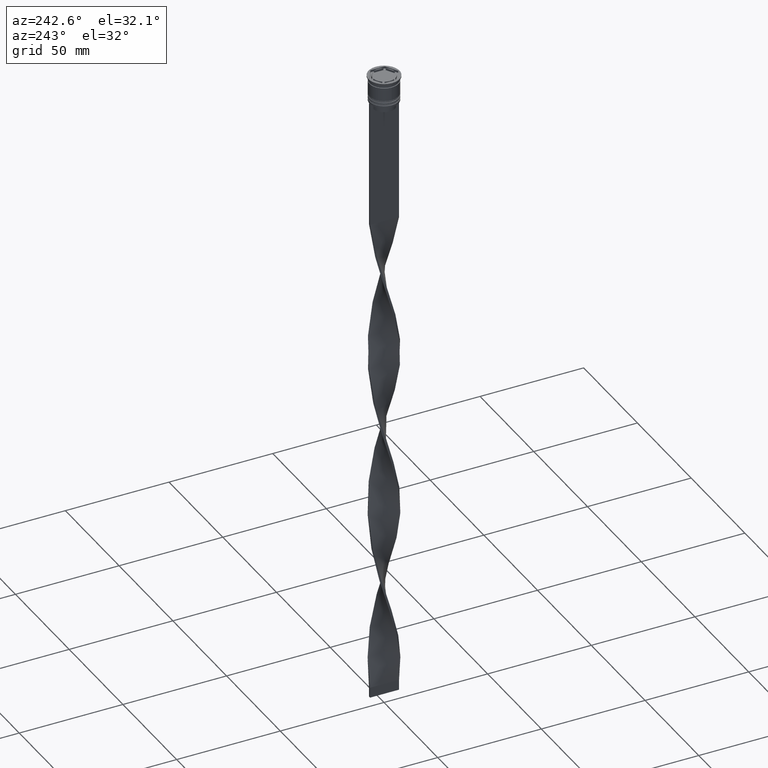
[diagram: clean part render]
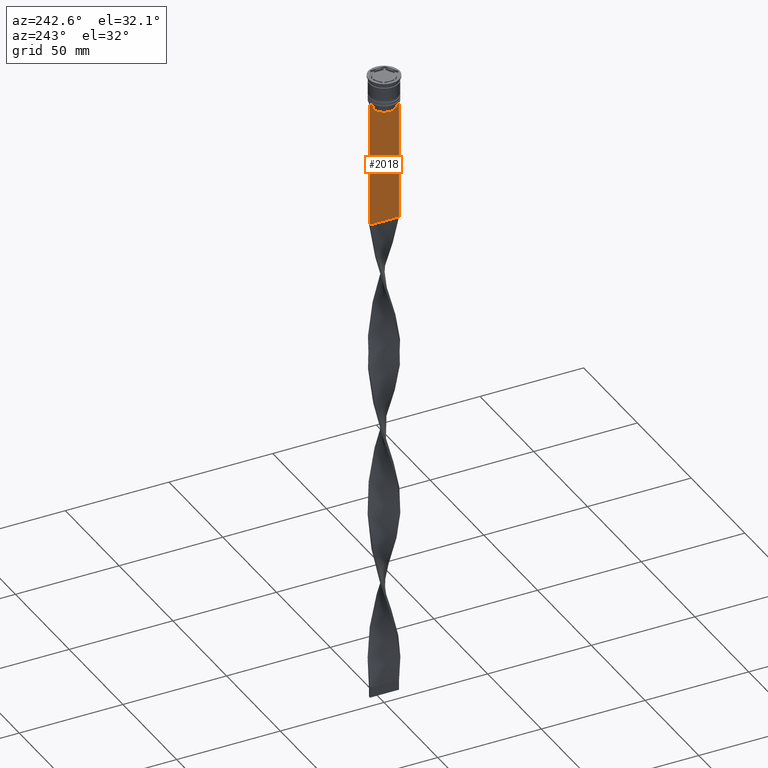
[diagram: same view with one face highlighted and labeled with its STEP entity id]
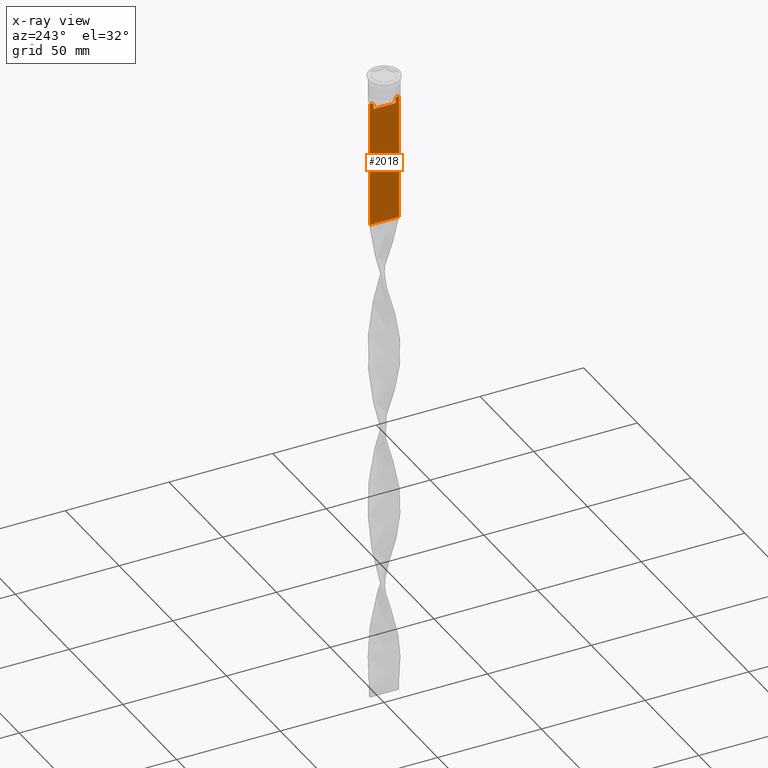
[diagram: x-ray of the same camera — body ghosted, the highlighted face saturated]
A machine part, auxiliary view. The second image highlights one B-rep face of the part: STEP entity #2018.
The next image is the same camera in x-ray: the body ghosted, the highlighted face saturated — about 0% of this face is hidden behind the body in this view.
In plain terms, the highlighted planar face has unit normal (-1, 0, 0).
Its self-contained STEP definition (entity closure, byte-faithful):
#19 = ORIENTED_EDGE ( 'NONE', *, *, #2084, .F. ) ;
#45 = CARTESIAN_POINT ( 'NONE',  ( -0.5000000000000000000, 5.544156989057553275, -12.83336397825725861 ) ) ;
#65 = CARTESIAN_POINT ( 'NONE',  ( -0.5000000000000000000, 5.376802023508029826, 0.000000000000000000 ) ) ;
#81 = DIRECTION ( 'NONE',  ( 0.000000000000000000, 0.000000000000000000, -1.000000000000000000 ) ) ;
#95 = CARTESIAN_POINT ( 'NONE',  ( -0.5000000000000000000, -5.878775382679629402, -12.50000000000000000 ) ) ;
#124 = VERTEX_POINT ( 'NONE', #604 ) ;
#148 = CARTESIAN_POINT ( 'NONE',  ( -0.5000000000000000000, -6.999999999999997335, -12.50000000000000000 ) ) ;
#159 = LINE ( 'NONE', #2689, #622 ) ;
#194 = CARTESIAN_POINT ( 'NONE',  ( -0.5000000000000000000, 7.000000000000002665, -12.50000000000000000 ) ) ;
#268 = ORIENTED_EDGE ( 'NONE', *, *, #2972, .F. ) ;
#278 = ORIENTED_EDGE ( 'NONE', *, *, #404, .F. ) ;
#350 = DIRECTION ( 'NONE',  ( -1.000000000000000000, 0.000000000000000000, 0.000000000000000000 ) ) ;
#387 = EDGE_CURVE ( 'NONE', #1512, #3869, #3907, .T. ) ;
#392 = LINE ( 'NONE', #3196, #895 ) ;
#401 = CARTESIAN_POINT ( 'NONE',  ( -0.5000000000000000000, -5.376802023508029826, 0.000000000000000000 ) ) ;
#404 = EDGE_CURVE ( 'NONE', #583, #522, #768, .T. ) ;
#421 = CARTESIAN_POINT ( 'NONE',  ( -0.5000000000000000000, -5.376802023508029826, -13.00000000000000178 ) ) ;
#429 = DIRECTION ( 'NONE',  ( 0.000000000000000000, 0.000000000000000000, -1.000000000000000000 ) ) ;
#434 = LINE ( 'NONE', #1696, #3149 ) ;
#522 = VERTEX_POINT ( 'NONE', #421 ) ;
#583 = VERTEX_POINT ( 'NONE', #4032 ) ;
#602 = EDGE_CURVE ( 'NONE', #919, #1512, #2760, .T. ) ;
#604 = CARTESIAN_POINT ( 'NONE',  ( -0.5000000000000000000, 5.376802023508029826, -15.50000000000000000 ) ) ;
#612 = VECTOR ( 'NONE', #1720, 1000.000000000000000 ) ;
#622 = VECTOR ( 'NONE', #2371, 1000.000000000000000 ) ;
#752 = VECTOR ( 'NONE', #429, 1000.000000000000000 ) ;
#763 = CARTESIAN_POINT ( 'NONE',  ( -0.5000000000000000000, 5.878775382679629402, -12.50000000000000000 ) ) ;
#768 = LINE ( 'NONE', #401, #612 ) ;
#812 = LINE ( 'NONE', #3614, #752 ) ;
#841 = CARTESIAN_POINT ( 'NONE',  ( -0.5000000000000000000, 6.881860213634102053, -12.50000000000000000 ) ) ;
#895 = VECTOR ( 'NONE', #1056, 1000.000000000000000 ) ;
#919 = VERTEX_POINT ( 'NONE', #194 ) ;
#948 = ORIENTED_EDGE ( 'NONE', *, *, #387, .F. ) ;
#995 = CARTESIAN_POINT ( 'NONE',  ( -0.5000000000000000000, 5.711478846560141598, -12.66669470477064685 ) ) ;
#1020 = LINE ( 'NONE', #2570, #1950 ) ;
#1036 = CARTESIAN_POINT ( 'NONE',  ( -0.5000000000000000000, 5.400000000000003908, -15.50000000000000000 ) ) ;
#1056 = DIRECTION ( 'NONE',  ( 0.000000000000000000, 0.000000000000000000, -1.000000000000000000 ) ) ;
#1178 = ORIENTED_EDGE ( 'NONE', *, *, #2221, .F. ) ;
#1215 = ORIENTED_EDGE ( 'NONE', *, *, #2292, .F. ) ;
#1217 = VECTOR ( 'NONE', #2011, 1000.000000000000000 ) ;
#1226 = AXIS2_PLACEMENT_3D ( 'NONE', #3269, #350, #3897 ) ;
#1237 = CARTESIAN_POINT ( 'NONE',  ( -0.5000000000000000000, -6.999999999999997335, -12.50000000000000000 ) ) ;
#1252 = VERTEX_POINT ( 'NONE', #2476 ) ;
#1306 = CARTESIAN_POINT ( 'NONE',  ( -0.5000000000000000000, 5.376802023508029826, -13.00000000000000178 ) ) ;
#1512 = VERTEX_POINT ( 'NONE', #841 ) ;
#1559 = CARTESIAN_POINT ( 'NONE',  ( -0.5000000000000000000, -5.376802023508029826, -13.00000000000000178 ) ) ;
#1696 = CARTESIAN_POINT ( 'NONE',  ( -0.5000000000000000000, -6.999999999999997335, -73.50000000000001421 ) ) ;
#1720 = DIRECTION ( 'NONE',  ( -0.000000000000000000, -0.000000000000000000, 1.000000000000000000 ) ) ;
#1743 = VECTOR ( 'NONE', #2287, 1000.000000000000000 ) ;
#1769 = VERTEX_POINT ( 'NONE', #95 ) ;
#1782 = CARTESIAN_POINT ( 'NONE',  ( -0.5000000000000000000, -6.999999999999997335, -73.50000000000001421 ) ) ;
#1801 = VECTOR ( 'NONE', #3075, 1000.000000000000000 ) ;
#1857 = FACE_OUTER_BOUND ( 'NONE', #3163, .T. ) ;
#1950 = VECTOR ( 'NONE', #2904, 1000.000000000000000 ) ;
#1999 = PLANE ( 'NONE',  #1226 ) ;
#2011 = DIRECTION ( 'NONE',  ( 0.000000000000000000, -1.000000000000000000, 0.000000000000000000 ) ) ;
#2018 = ADVANCED_FACE ( 'NONE', ( #1857 ), #1999, .T. ) ;
#2040 = EDGE_CURVE ( 'NONE', #2887, #4051, #434, .T. ) ;
#2061 = EDGE_CURVE ( 'NONE', #1252, #124, #2545, .T. ) ;
#2084 = EDGE_CURVE ( 'NONE', #2947, #2887, #392, .T. ) ;
#2120 = B_SPLINE_CURVE_WITH_KNOTS ( 'NONE', 3,
 ( #1559, #3548, #2250, #2830 ),
 .UNSPECIFIED., .F., .F.,
 ( 4, 4 ),
 ( 0.02539176325380714666, 0.02610162431828674801 ),
 .UNSPECIFIED. ) ;
#2197 = EDGE_CURVE ( 'NONE', #3869, #1252, #3830, .T. ) ;
#2221 = EDGE_CURVE ( 'NONE', #124, #583, #3837, .T. ) ;
#2250 = CARTESIAN_POINT ( 'NONE',  ( -0.5000000000000000000, -5.711478856069293286, -12.66669469529570335 ) ) ;
#2287 = DIRECTION ( 'NONE',  ( 0.000000000000000000, -1.000000000000000000, 0.000000000000000000 ) ) ;
#2292 = EDGE_CURVE ( 'NONE', #2650, #2947, #159, .T. ) ;
#2371 = DIRECTION ( 'NONE',  ( 0.000000000000000000, -1.000000000000000000, 0.000000000000000000 ) ) ;
#2476 = CARTESIAN_POINT ( 'NONE',  ( -0.5000000000000000000, 5.376802023508029826, -13.00000000000000178 ) ) ;
#2508 = ORIENTED_EDGE ( 'NONE', *, *, #2994, .F. ) ;
#2545 = LINE ( 'NONE', #65, #3478 ) ;
#2570 = CARTESIAN_POINT ( 'NONE',  ( -0.5000000000000000000, -6.999999999999997335, -12.50000000000000000 ) ) ;
#2602 = EDGE_CURVE ( 'NONE', #919, #4051, #812, .T. ) ;
#2624 = DIRECTION ( 'NONE',  ( 0.000000000000000000, 1.000000000000000000, 0.000000000000000000 ) ) ;
#2650 = VERTEX_POINT ( 'NONE', #2699 ) ;
#2689 = CARTESIAN_POINT ( 'NONE',  ( -0.5000000000000000000, -6.999999999999997335, -12.50000000000000000 ) ) ;
#2693 = ORIENTED_EDGE ( 'NONE', *, *, #2197, .F. ) ;
#2699 = CARTESIAN_POINT ( 'NONE',  ( -0.5000000000000000000, -6.881860213634102053, -12.50000000000000000 ) ) ;
#2760 = LINE ( 'NONE', #1237, #1801 ) ;
#2830 = CARTESIAN_POINT ( 'NONE',  ( -0.5000000000000000000, -5.878775382679629402, -12.50000000000000000 ) ) ;
#2849 = CARTESIAN_POINT ( 'NONE',  ( -0.5000000000000000000, -6.999999999999997335, -12.50000000000000000 ) ) ;
#2872 = ORIENTED_EDGE ( 'NONE', *, *, #2602, .T. ) ;
#2884 = CARTESIAN_POINT ( 'NONE',  ( -0.5000000000000000000, 5.878775382679629402, -12.50000000000000000 ) ) ;
#2887 = VERTEX_POINT ( 'NONE', #1782 ) ;
#2904 = DIRECTION ( 'NONE',  ( 0.000000000000000000, -1.000000000000000000, 0.000000000000000000 ) ) ;
#2947 = VERTEX_POINT ( 'NONE', #2849 ) ;
#2972 = EDGE_CURVE ( 'NONE', #1769, #2650, #1020, .T. ) ;
#2994 = EDGE_CURVE ( 'NONE', #522, #1769, #2120, .T. ) ;
#3075 = DIRECTION ( 'NONE',  ( 0.000000000000000000, -1.000000000000000000, 0.000000000000000000 ) ) ;
#3143 = ORIENTED_EDGE ( 'NONE', *, *, #602, .F. ) ;
#3149 = VECTOR ( 'NONE', #2624, 1000.000000000000000 ) ;
#3163 = EDGE_LOOP ( 'NONE', ( #2693, #948, #3143, #2872, #3776, #19, #1215, #268, #2508, #278, #1178, #3626 ) ) ;
#3196 = CARTESIAN_POINT ( 'NONE',  ( -0.5000000000000000000, -6.999999999999997335, 1.535668847618198329 ) ) ;
#3269 = CARTESIAN_POINT ( 'NONE',  ( -0.5000000000000000000, -6.999999999999997335, 1.535668847618198329 ) ) ;
#3478 = VECTOR ( 'NONE', #81, 1000.000000000000000 ) ;
#3548 = CARTESIAN_POINT ( 'NONE',  ( -0.5000000000000000000, -5.544156999454441959, -12.83336396790503642 ) ) ;
#3614 = CARTESIAN_POINT ( 'NONE',  ( -0.5000000000000000000, 7.000000000000002665, 1.535668847618198329 ) ) ;
#3626 = ORIENTED_EDGE ( 'NONE', *, *, #2061, .F. ) ;
#3679 = CARTESIAN_POINT ( 'NONE',  ( -0.5000000000000000000, 7.000000000000002665, -73.50000000000001421 ) ) ;
#3776 = ORIENTED_EDGE ( 'NONE', *, *, #2040, .F. ) ;
#3830 = B_SPLINE_CURVE_WITH_KNOTS ( 'NONE', 3,
 ( #2884, #995, #45, #1306 ),
 .UNSPECIFIED., .F., .F.,
 ( 4, 4 ),
 ( 0.01003009312103698807, 0.01073859663834952557 ),
 .UNSPECIFIED. ) ;
#3837 = LINE ( 'NONE', #1036, #1743 ) ;
#3869 = VERTEX_POINT ( 'NONE', #763 ) ;
#3897 = DIRECTION ( 'NONE',  ( 0.000000000000000000, 0.000000000000000000, 1.000000000000000000 ) ) ;
#3907 = LINE ( 'NONE', #148, #1217 ) ;
#4032 = CARTESIAN_POINT ( 'NONE',  ( -0.5000000000000000000, -5.376802023508029826, -15.50000000000000000 ) ) ;
#4051 = VERTEX_POINT ( 'NONE', #3679 ) ;